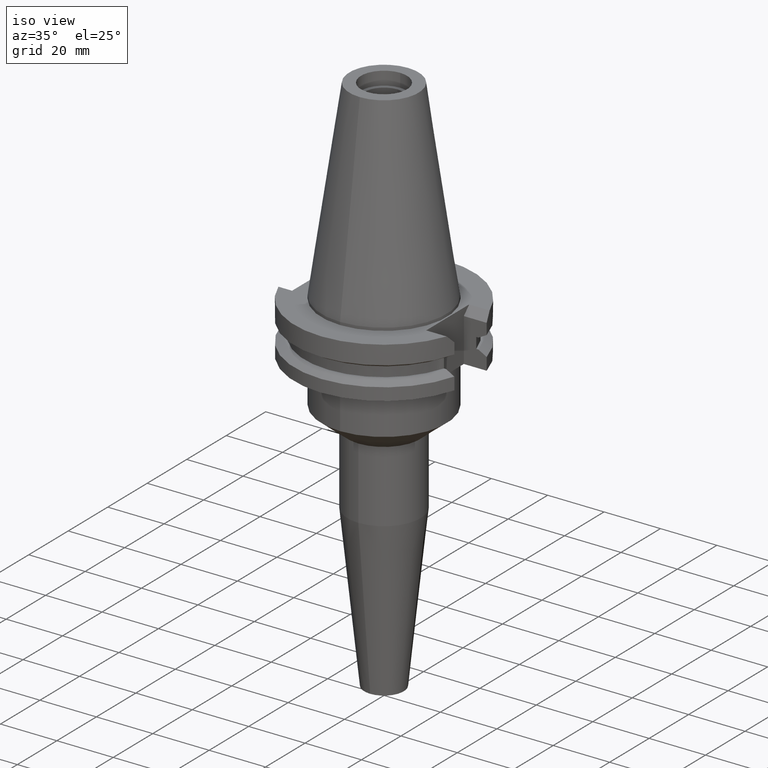
[diagram: clean part render]
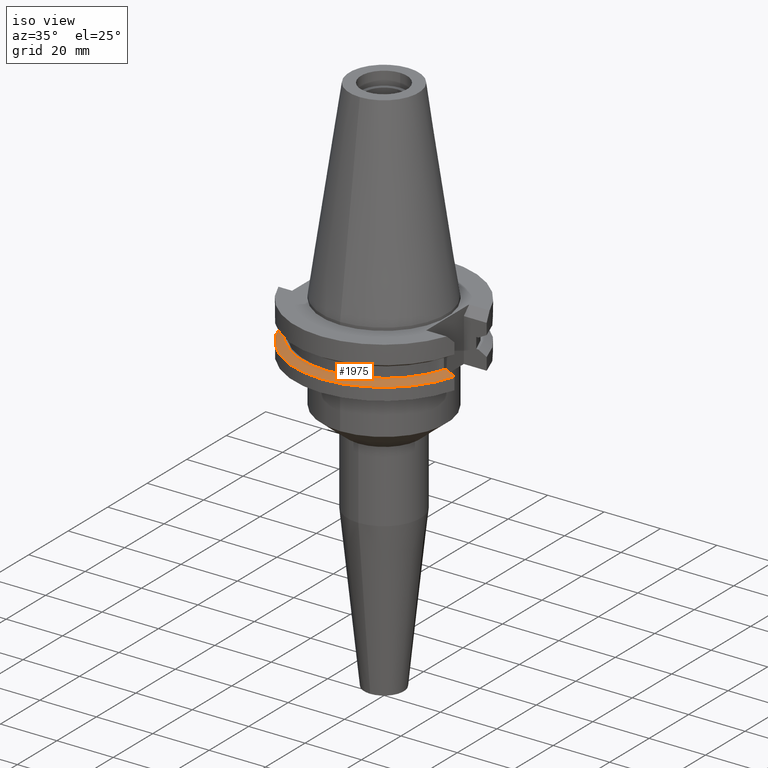
[diagram: same view with one face highlighted and labeled with its STEP entity id]
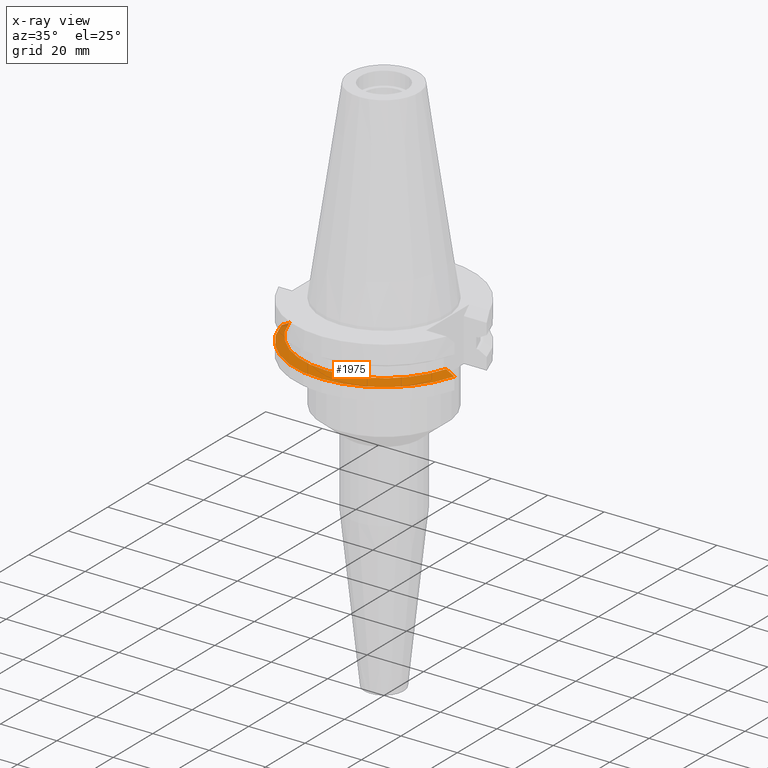
[diagram: x-ray of the same camera — body ghosted, the highlighted face saturated]
A machine part, iso view. The second image highlights one B-rep face of the part: STEP entity #1975.
The next image is the same camera in x-ray: the body ghosted, the highlighted face saturated — about 1% of this face is hidden behind the body in this view.
In plain terms, the highlighted conical surface has half-angle 60 deg.
Its self-contained STEP definition (entity closure, byte-faithful):
#750=CARTESIAN_POINT('',(0.E0,1.055026073065E-14,-1.30475E1));
#751=DIRECTION('',(0.E0,0.E0,-1.E0));
#752=DIRECTION('',(9.592008904640E-1,-2.827253998727E-1,0.E0));
#753=AXIS2_PLACEMENT_3D('',#750,#751,#752);
#758=CARTESIAN_POINT('',(0.E0,1.055026073065E-14,-1.30475E1));
#759=DIRECTION('',(0.E0,0.E0,-1.E0));
#760=DIRECTION('',(0.E0,-1.E0,0.E0));
#761=AXIS2_PLACEMENT_3D('',#758,#759,#760);
#782=CARTESIAN_POINT('',(2.778616453829E1,-8.190000190935E0,-1.30475E1));
#783=CARTESIAN_POINT('',(2.809990352740E1,-8.190000190935E0,-1.322124704864E1));
#784=CARTESIAN_POINT('',(2.873223283077E1,-8.189999991752E0,-1.357189639279E1));
#785=CARTESIAN_POINT('',(2.969533433654E1,-8.189999742465E0,-1.410730662781E1));
#786=CARTESIAN_POINT('',(3.034714690693E1,-8.190000606414E0,-1.447051230510E1));
#787=CARTESIAN_POINT('',(3.067550146399E1,-8.190000606414E0,-1.465367218811E1));
#792=CARTESIAN_POINT('',(0.E0,1.055026073065E-14,-1.465366676908E1));
#793=DIRECTION('',(0.E0,0.E0,-1.E0));
#794=DIRECTION('',(9.661575315241E-1,-2.579527559055E-1,0.E0));
#795=AXIS2_PLACEMENT_3D('',#792,#793,#794);
#800=CARTESIAN_POINT('',(0.E0,1.055026073065E-14,-1.465366676908E1));
#801=DIRECTION('',(0.E0,0.E0,-1.E0));
#802=DIRECTION('',(0.E0,-1.E0,0.E0));
#803=AXIS2_PLACEMENT_3D('',#800,#801,#802);
#808=CARTESIAN_POINT('',(-3.067550165946E1,-8.189999874273E0,
-1.465366564557E1));
#809=CARTESIAN_POINT('',(-3.034715297294E1,-8.189999874273E0,
-1.447050903371E1));
#810=CARTESIAN_POINT('',(-2.969533583562E1,-8.189999973374E0,
-1.410731012423E1));
#811=CARTESIAN_POINT('',(-2.873223787327E1,-8.190000281781E0,
-1.357190203072E1));
#812=CARTESIAN_POINT('',(-2.809990364392E1,-8.189999360262E0,
-1.322124019074E1));
#813=CARTESIAN_POINT('',(-2.778617704656E1,-8.189999360262E0,-1.30475E1));
#1308=CARTESIAN_POINT('',(3.067550146399E1,-8.190000606414E0,
-1.465367218811E1));
#1309=VERTEX_POINT('',#1308);
#1310=VERTEX_POINT('',#782);
#1320=CARTESIAN_POINT('',(-3.067550165946E1,-8.189999874273E0,
-1.465366564557E1));
#1321=VERTEX_POINT('',#1320);
#1322=CARTESIAN_POINT('',(0.E0,-3.175E1,-1.465366676908E1));
#1323=VERTEX_POINT('',#1322);
#1341=CARTESIAN_POINT('',(-2.778617704656E1,-8.189999360262E0,-1.30475E1));
#1342=VERTEX_POINT('',#1341);
#1363=CARTESIAN_POINT('',(3.537899182731E-14,-2.896803755053E1,-1.30475E1));
#1364=VERTEX_POINT('',#1363);
#1962=CARTESIAN_POINT('',(0.E0,1.055026073065E-14,-1.385058338454E1));
#1963=DIRECTION('',(0.E0,0.E0,-1.E0));
#1964=DIRECTION('',(0.E0,-1.E0,0.E0));
#1965=AXIS2_PLACEMENT_3D('',#1962,#1963,#1964);
#1966=CONICAL_SURFACE('',#1965,3.035901877527E1,6.E1);
#1967=ORIENTED_EDGE('',*,*,#1842,.T.);
#1968=ORIENTED_EDGE('',*,*,#1870,.T.);
#1969=ORIENTED_EDGE('',*,*,#1868,.T.);
#1970=ORIENTED_EDGE('',*,*,#1892,.T.);
#1971=ORIENTED_EDGE('',*,*,#1954,.F.);
#1972=ORIENTED_EDGE('',*,*,#1952,.F.);
#1973=EDGE_LOOP('',(#1967,#1968,#1969,#1970,#1971,#1972));
#1974=FACE_OUTER_BOUND('',#1973,.F.);
#754=CIRCLE('',#753,2.896803755053E1);
#762=CIRCLE('',#761,2.896803755053E1);
#788=B_SPLINE_CURVE_WITH_KNOTS('',3,(#782,#783,#784,#785,#786,#787),
.UNSPECIFIED.,.F.,.F.,(4,1,1,4),(0.E0,3.333333333333E-1,6.666666666667E-1,1.E0),
.UNSPECIFIED.);
#796=CIRCLE('',#795,3.175E1);
#804=CIRCLE('',#803,3.175E1);
#814=B_SPLINE_CURVE_WITH_KNOTS('',3,(#808,#809,#810,#811,#812,#813),
.UNSPECIFIED.,.F.,.F.,(4,1,1,4),(0.E0,3.333333333333E-1,6.666666666667E-1,1.E0),
.UNSPECIFIED.);
#1842=EDGE_CURVE('',#1310,#1309,#788,.T.);
#1868=EDGE_CURVE('',#1323,#1321,#804,.T.);
#1870=EDGE_CURVE('',#1309,#1323,#796,.T.);
#1892=EDGE_CURVE('',#1321,#1342,#814,.T.);
#1952=EDGE_CURVE('',#1310,#1364,#754,.T.);
#1954=EDGE_CURVE('',#1364,#1342,#762,.T.);
#1975=ADVANCED_FACE('',(#1974),#1966,.T.);